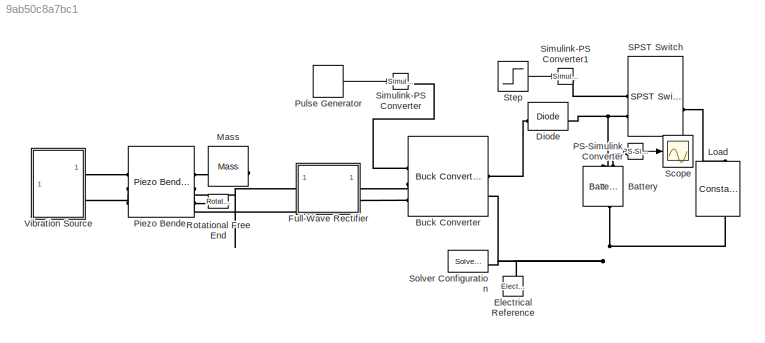
MODEL slx_9ab50c8a7bc1
KIND model
CONFIG AbsTol = 1e-3
CONFIG EnableMultiTasking = on
CONFIG FixedStep = auto
CONFIG MaxStep = 1e-3
CONFIG MinStep = auto
CONFIG RelTol = 1e-3
CONFIG SampleTimeConstraint = Unconstrained
CONFIG SolverName = ode23t
CONFIG StartTime = 0.0
CONFIG StopFcn = ee_addSimlogTimeStamp(bdroot)
CONFIG StopTime = 1.00
BLOCK [Reference] Battery  REF=batteryecm_lib/Battery
  NameLocation = right
  SourceBlock = batteryecm_lib/Battery
  SourceType = Battery
BLOCK [Reference] Buck Converter  REF=ee_lib/Semiconductors &
Converters/Converters/Buck Converter
  SourceBlock = ee_lib/Semiconductors &\nConverters/Converters/Buck Converter
  SourceType = Buck Converter
BLOCK [Reference] Diode  REF=ee_lib/Semiconductors &
Converters/Diode
  SourceBlock = ee_lib/Semiconductors &\nConverters/Diode
  SourceType = Diode
BLOCK [Reference] Electrical Reference  REF=fl_lib/Electrical/Electrical Elements/Electrical Reference
  NameLocation = right
  SourceBlock = fl_lib/Electrical/Electrical Elements/Electrical Reference
  SourceType = Electrical Reference
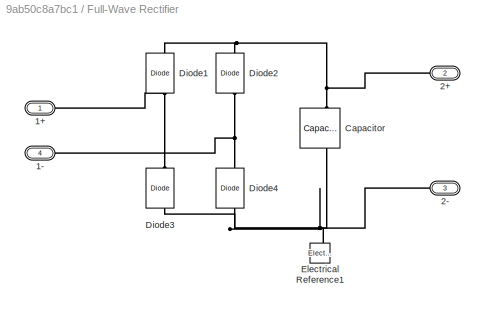
BLOCK [SubSystem] Full-Wave Rectifier
BLOCK [PMIOPort] Full-Wave Rectifier/1+
  Side = Left
BLOCK [PMIOPort] Full-Wave Rectifier/1-
  Port = 4
  Side = Left
BLOCK [PMIOPort] Full-Wave Rectifier/2+
  Port = 2
  Side = Right
BLOCK [PMIOPort] Full-Wave Rectifier/2-
  Port = 3
  Side = Right
BLOCK [Reference] Full-Wave Rectifier/Capacitor  REF=ee_lib/Passive/Capacitor
  NameLocation = left
  SourceBlock = ee_lib/Passive/Capacitor
  SourceType = Capacitor
BLOCK [Reference] Full-Wave Rectifier/Diode1  REF=ee_lib/Semiconductors &
Converters/Diode
  NameLocation = right
  SourceBlock = ee_lib/Semiconductors &\nConverters/Diode
  SourceType = Diode
BLOCK [Reference] Full-Wave Rectifier/Diode2  REF=ee_lib/Semiconductors &
Converters/Diode
  NameLocation = right
  SourceBlock = ee_lib/Semiconductors &\nConverters/Diode
  SourceType = Diode
BLOCK [Reference] Full-Wave Rectifier/Diode3  REF=ee_lib/Semiconductors &
Converters/Diode
  NameLocation = right
  SourceBlock = ee_lib/Semiconductors &\nConverters/Diode
  SourceType = Diode
BLOCK [Reference] Full-Wave Rectifier/Diode4  REF=ee_lib/Semiconductors &
Converters/Diode
  NameLocation = right
  SourceBlock = ee_lib/Semiconductors &\nConverters/Diode
  SourceType = Diode
BLOCK [Reference] Full-Wave Rectifier/Electrical Reference1  REF=fl_lib/Electrical/Electrical Elements/Electrical Reference
  NameLocation = right
  SourceBlock = fl_lib/Electrical/Electrical Elements/Electrical Reference
  SourceType = Electrical Reference
BLOCK [Reference] Load  REF=ee_lib/Passive/Constant Power Load
  NameLocation = right
  SourceBlock = ee_lib/Passive/Constant Power Load
  SourceType = Constant Power Load
BLOCK [Reference] Mass  REF=fl_lib/Mechanical/Translational
Elements/Mass
  NameLocation = top
  SourceBlock = fl_lib/Mechanical/Translational\nElements/Mass
  SourceType = Mass
BLOCK [Reference] PS-Simulink Converter  REF=nesl_utility/PS-Simulink
Converter
  SourceBlock = nesl_utility/PS-Simulink\nConverter
  SourceType = PS-Simulink\nConverter
BLOCK [Reference] Piezo Bender  REF=ee_lib/Electromechanical/Mechatronic
Actuators/Piezo Bender
  SourceBlock = ee_lib/Electromechanical/Mechatronic\nActuators/Piezo Bender
  SourceType = Piezo Bender
BLOCK [DiscretePulseGenerator] Pulse Generator
  Amplitude = 5
  Period = 1e-3
  PulseType = Time based
  PulseWidth = 25
BLOCK [Reference] Rotational Free End  REF=fl_lib/Mechanical/Rotational Elements/Rotational Free End
  NameLocation = top
  SourceBlock = fl_lib/Mechanical/Rotational Elements/Rotational Free End
  SourceType = Rotational Free End
BLOCK [Reference] SPST Switch  REF=ee_lib/Switches & Breakers/SPST Switch
  SourceBlock = ee_lib/Switches & Breakers/SPST Switch
  SourceType = SPST Switch
BLOCK [Scope] Scope
  Floating = off
  NumInputPorts = 1
  ScopeSpecificationString = Simulink.scopes.TimeScopeBlockCfg('CurrentConfiguration', extmgr.ConfigurationSet(extmgr.Configuration('Core','General UI',true),extmgr.Configuration('Core','Source UI',true),extmgr.Configuration('Sources','WiredSimulink',true),extmgr.Configuration('Visuals','Time Domain',true,'SerializedDisplays',{struct('MinYLimReal','799.99814','MaxYLimReal','800.00165','YLabelReal','mAh','MinYLimMag','799.9981...<+1571ch>
BLOCK [Reference] Simulink-PS Converter  REF=nesl_utility/Simulink-PS
Converter
  SourceBlock = nesl_utility/Simulink-PS\nConverter
  SourceType = Simulink-PS\nConverter
BLOCK [Reference] Simulink-PS Converter1  REF=nesl_utility/Simulink-PS
Converter
  SourceBlock = nesl_utility/Simulink-PS\nConverter
  SourceType = Simulink-PS\nConverter
BLOCK [Reference] Solver Configuration  REF=nesl_utility/Solver
Configuration
  SourceBlock = nesl_utility/Solver\nConfiguration
  SourceType = Solver\nConfiguration
BLOCK [Step] Step
  SampleTime = 0
  Time = 0.7
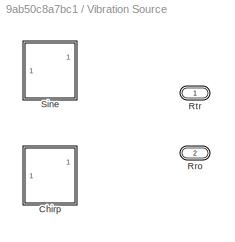
BLOCK [SubSystem] Vibration Source
  LabelModeActiveChoice = Chirp
  Variant = on
  VariantControl = Choice
  VariantControlMode = label
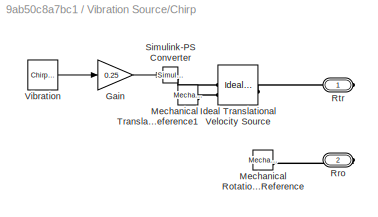
BLOCK [SubSystem] Vibration Source/Chirp
  VariantControl = Chirp
BLOCK [Gain] Vibration Source/Chirp/Gain
  Gain = 0.25
BLOCK [Reference] Vibration Source/Chirp/Ideal Translational Velocity Source  REF=fl_lib/Mechanical/Mechanical Sources/Ideal Translational
Velocity Source
  SourceBlock = fl_lib/Mechanical/Mechanical Sources/Ideal Translational\nVelocity Source
  SourceType = Ideal Translational\nVelocity Source
BLOCK [Reference] Vibration Source/Chirp/Mechanical Rotational Reference  REF=fl_lib/Mechanical/Rotational Elements/Mechanical
Rotational Reference
  SourceBlock = fl_lib/Mechanical/Rotational Elements/Mechanical\nRotational Reference
  SourceType = Mechanical\nRotational Reference
BLOCK [Reference] Vibration Source/Chirp/Mechanical Translational Reference1  REF=fl_lib/Mechanical/Translational
Elements/Mechanical
Translational
Reference
  SourceBlock = fl_lib/Mechanical/Translational\nElements/Mechanical\nTranslational\nReference
  SourceType = Mechanical\nTranslational\nReference
BLOCK [PMIOPort] Vibration Source/Chirp/Rro
  Port = 2
  Side = Right
BLOCK [PMIOPort] Vibration Source/Chirp/Rtr
  Side = Right
BLOCK [Reference] Vibration Source/Chirp/Simulink-PS Converter  REF=nesl_utility/Simulink-PS
Converter
  SourceBlock = nesl_utility/Simulink-PS\nConverter
  SourceType = Simulink-PS\nConverter
BLOCK [Reference] Vibration Source/Chirp/Vibration  REF=simulink/Sources/Chirp Signal
  SourceBlock = simulink/Sources/Chirp Signal
  SourceType = chirp
BLOCK [PMIOPort] Vibration Source/Rro
  Port = 2
  Side = Right
BLOCK [PMIOPort] Vibration Source/Rtr
  Side = Right
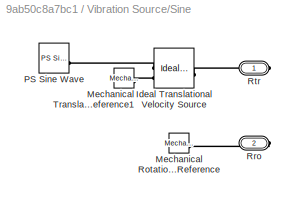
BLOCK [SubSystem] Vibration Source/Sine
  VariantControl = Sine
BLOCK [Reference] Vibration Source/Sine/Ideal Translational Velocity Source  REF=fl_lib/Mechanical/Mechanical Sources/Ideal Translational
Velocity Source
  SourceBlock = fl_lib/Mechanical/Mechanical Sources/Ideal Translational\nVelocity Source
  SourceType = Ideal Translational\nVelocity Source
BLOCK [Reference] Vibration Source/Sine/Mechanical Rotational Reference  REF=fl_lib/Mechanical/Rotational Elements/Mechanical
Rotational Reference
  SourceBlock = fl_lib/Mechanical/Rotational Elements/Mechanical\nRotational Reference
  SourceType = Mechanical\nRotational Reference
BLOCK [Reference] Vibration Source/Sine/Mechanical Translational Reference1  REF=fl_lib/Mechanical/Translational
Elements/Mechanical
Translational
Reference
  SourceBlock = fl_lib/Mechanical/Translational\nElements/Mechanical\nTranslational\nReference
  SourceType = Mechanical\nTranslational\nReference
BLOCK [Reference] Vibration Source/Sine/PS Sine Wave  REF=fl_lib/Physical Signals/Sources/PS Sine Wave
  SourceBlock = fl_lib/Physical Signals/Sources/PS Sine Wave
  SourceType = PS Sine Wave
BLOCK [PMIOPort] Vibration Source/Sine/Rro
  Port = 2
  Side = Right
BLOCK [PMIOPort] Vibration Source/Sine/Rtr
  Side = Right
LINE PS-Simulink Converter:1 -> Scope:1
LINE Pulse Generator:1 -> Simulink-PS Converter:1
LINE Step:1 -> Simulink-PS Converter1:1
LINE Vibration Source/Chirp/Gain:1 -> Vibration Source/Chirp/Simulink-PS Converter:1
LINE Vibration Source/Chirp/Vibration:1 -> Vibration Source/Chirp/Gain:1
PNET net1: Battery:LConn1 -- Diode:RConn1 -- SPST Switch:LConn2
PLINE Battery:LConn2 -- PS-Simulink Converter:LConn1
PNET net2: Battery:RConn1 -- Buck Converter:RConn2 -- Electrical Reference:LConn1 -- Load:RConn1 -- Solver Configuration:RConn1
PLINE Buck Converter:LConn1 -- Simulink-PS Converter:RConn1
PLINE Buck Converter:LConn2 -- Full-Wave Rectifier:RConn1
PLINE Buck Converter:LConn3 -- Full-Wave Rectifier:RConn2
PLINE Buck Converter:RConn1 -- Diode:LConn1
PNET net3: Full-Wave Rectifier/1+:RConn1 -- Full-Wave Rectifier/Diode1:LConn1 -- Full-Wave Rectifier/Diode3:RConn1
PNET net4: Full-Wave Rectifier/1-:RConn1 -- Full-Wave Rectifier/Diode2:LConn1 -- Full-Wave Rectifier/Diode4:RConn1
PNET net5: Full-Wave Rectifier/2+:RConn1 -- Full-Wave Rectifier/Capacitor:LConn1 -- Full-Wave Rectifier/Diode1:RConn1 -- Full-Wave Rectifier/Diode2:RConn1
PNET net6: Full-Wave Rectifier/2-:RConn1 -- Full-Wave Rectifier/Capacitor:RConn1 -- Full-Wave Rectifier/Diode3:LConn1 -- Full-Wave Rectifier/Diode4:LConn1 -- Full-Wave Rectifier/Electrical Reference1:LConn1
PLINE Full-Wave Rectifier:LConn1 -- Piezo Bender:LConn3
PLINE Full-Wave Rectifier:LConn2 -- Piezo Bender:RConn3
PLINE Load:LConn1 -- SPST Switch:RConn1
PLINE Mass:LConn1 -- Piezo Bender:RConn1
PLINE Piezo Bender:LConn1 -- Vibration Source:RConn1
PLINE Piezo Bender:LConn2 -- Vibration Source:RConn2
PLINE Piezo Bender:RConn2 -- Rotational Free End:LConn1
PLINE SPST Switch:LConn1 -- Simulink-PS Converter1:RConn1
PLINE Vibration Source/Chirp/Ideal Translational Velocity Source:LConn1 -- Vibration Source/Chirp/Rtr:RConn1
PLINE Vibration Source/Chirp/Ideal Translational Velocity Source:RConn1 -- Vibration Source/Chirp/Simulink-PS Converter:RConn1
PLINE Vibration Source/Chirp/Ideal Translational Velocity Source:RConn2 -- Vibration Source/Chirp/Mechanical Translational Reference1:LConn1
PLINE Vibration Source/Chirp/Mechanical Rotational Reference:LConn1 -- Vibration Source/Chirp/Rro:RConn1
PLINE Vibration Source/Sine/Ideal Translational Velocity Source:LConn1 -- Vibration Source/Sine/Rtr:RConn1
PLINE Vibration Source/Sine/Ideal Translational Velocity Source:RConn1 -- Vibration Source/Sine/PS Sine Wave:RConn1
PLINE Vibration Source/Sine/Ideal Translational Velocity Source:RConn2 -- Vibration Source/Sine/Mechanical Translational Reference1:LConn1
PLINE Vibration Source/Sine/Mechanical Rotational Reference:LConn1 -- Vibration Source/Sine/Rro:RConn1
note: PNET lines group multi-terminal physical nets as a canonical sorted terminal list (undirected conserving connections); 2-terminal nets keep the pairwise PLINE form
